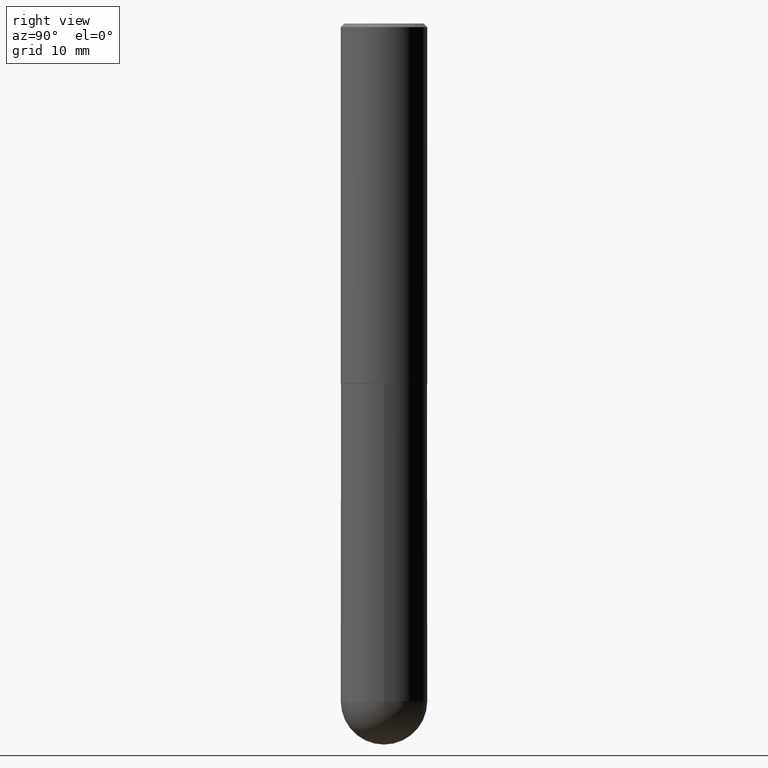
[diagram: clean part render]
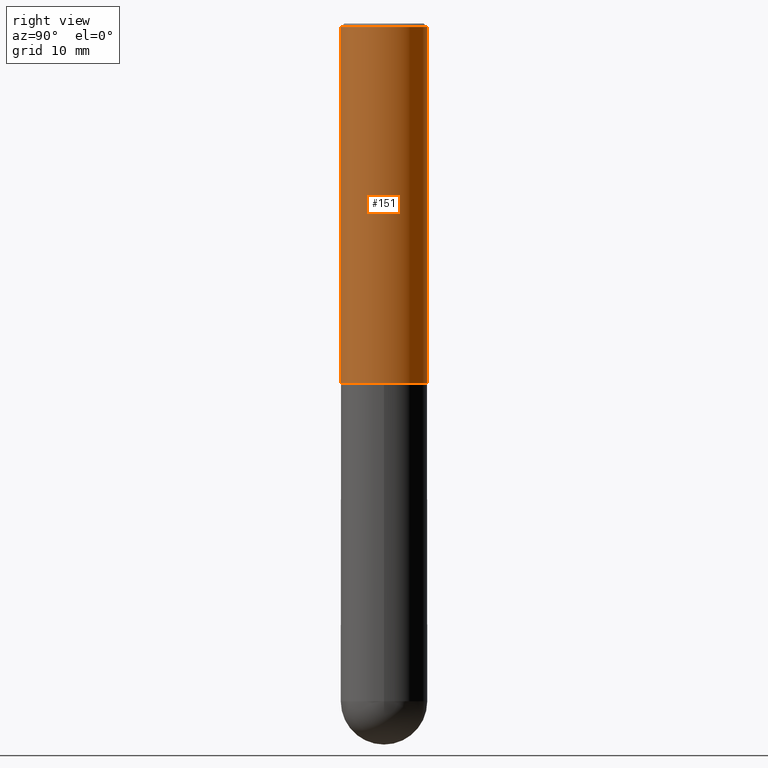
[diagram: same view with one face highlighted and labeled with its STEP entity id]
A machine part, right view. The second image highlights one B-rep face of the part: STEP entity #151.
In plain terms, the highlighted cylindrical surface (partial cylindrical patch) has radius 5.9995 mm, axis along (-0, 0, 1).
Its self-contained STEP definition (entity closure, byte-faithful):
#4 = EDGE_CURVE ( 'NONE', #54, #133, #227, .T. ) ;
#5 = CARTESIAN_POINT ( 'NONE',  ( 1.678301941865381835E-15, 0.2361999999999933597, -1.967500000000001137 ) ) ;
#16 = VERTEX_POINT ( 'NONE', #126 ) ;
#17 = ORIENTED_EDGE ( 'NONE', *, *, #149, .F. ) ;
#27 = EDGE_CURVE ( 'NONE', #54, #305, #206, .T. ) ;
#28 = VECTOR ( 'NONE', #360, 39.37007874015748143 ) ;
#33 = CARTESIAN_POINT ( 'NONE',  ( -1.620449627073635079E-15, -0.2362000000000000766, -0.01999999999999922673 ) ) ;
#34 = CYLINDRICAL_SURFACE ( 'NONE', #345, 0.2362000000000001043 ) ;
#37 = CIRCLE ( 'NONE', #114, 0.2361999999999999933 ) ;
#41 = ORIENTED_EDGE ( 'NONE', *, *, #27, .T. ) ;
#54 = VERTEX_POINT ( 'NONE', #251 ) ;
#60 = AXIS2_PLACEMENT_3D ( 'NONE', #95, #375, #153 ) ;
#95 = CARTESIAN_POINT ( 'NONE',  ( 4.809137526040556277E-29, -6.872815271738149679E-15, -1.967500000000000249 ) ) ;
#103 = CARTESIAN_POINT ( 'NONE',  ( -1.649375784469496722E-15, -0.2362000000000001043, 8.250871497761379229E-16 ) ) ;
#105 = CARTESIAN_POINT ( 'NONE',  ( 1.678301941865357183E-15, 0.2362000000000001043, -8.250871497761379229E-16 ) ) ;
#114 = AXIS2_PLACEMENT_3D ( 'NONE', #216, #376, #208 ) ;
#126 = CARTESIAN_POINT ( 'NONE',  ( 1.649375784469496525E-15, 0.2361999999999999378, -0.02000000000000087472 ) ) ;
#133 = VERTEX_POINT ( 'NONE', #33 ) ;
#149 = EDGE_CURVE ( 'NONE', #133, #16, #37, .T. ) ;
#151 = ADVANCED_FACE ( 'NONE', ( #342 ), #34, .T. ) ;
#153 = DIRECTION ( 'NONE',  ( -6.982962677686265133E-15, -1.000000000000000000, 3.469747663417773847E-15 ) ) ;
#154 = CARTESIAN_POINT ( 'NONE',  ( 0.000000000000000000, 0.000000000000000000, 0.000000000000000000 ) ) ;
#158 = ORIENTED_EDGE ( 'NONE', *, *, #4, .F. ) ;
#167 = DIRECTION ( 'NONE',  ( -2.444288450338274442E-29, 3.493171675597534541E-15, 1.000000000000000000 ) ) ;
#206 = CIRCLE ( 'NONE', #60, 0.2362000000000002153 ) ;
#208 = DIRECTION ( 'NONE',  ( -6.982962677686265922E-15, -1.000000000000000000, 3.487819265831411744E-15 ) ) ;
#215 = DIRECTION ( 'NONE',  ( -6.982962677686265922E-15, -1.000000000000000000, 3.493171675597534146E-15 ) ) ;
#216 = CARTESIAN_POINT ( 'NONE',  ( 4.888576900676561635E-31, -6.986343351195086880E-17, -0.02000000000000005246 ) ) ;
#227 = LINE ( 'NONE', #103, #28 ) ;
#251 = CARTESIAN_POINT ( 'NONE',  ( -1.649375784469449391E-15, -0.2362000000000070710, -1.967499999999999361 ) ) ;
#292 = LINE ( 'NONE', #105, #372 ) ;
#305 = VERTEX_POINT ( 'NONE', #5 ) ;
#314 = DIRECTION ( 'NONE',  ( -2.444288450338274722E-29, 3.493171675597534541E-15, 1.000000000000000000 ) ) ;
#336 = ORIENTED_EDGE ( 'NONE', *, *, #389, .T. ) ;
#342 = FACE_OUTER_BOUND ( 'NONE', #368, .T. ) ;
#345 = AXIS2_PLACEMENT_3D ( 'NONE', #154, #314, #215 ) ;
#360 = DIRECTION ( 'NONE',  ( -2.444288450338274442E-29, 3.493171675597534541E-15, 1.000000000000000000 ) ) ;
#368 = EDGE_LOOP ( 'NONE', ( #41, #336, #17, #158 ) ) ;
#372 = VECTOR ( 'NONE', #167, 39.37007874015748143 ) ;
#375 = DIRECTION ( 'NONE',  ( -2.444288450338274722E-29, 3.493171675597534541E-15, 1.000000000000000000 ) ) ;
#376 = DIRECTION ( 'NONE',  ( -2.444288450338274722E-29, 3.493171675597534541E-15, 1.000000000000000000 ) ) ;
#389 = EDGE_CURVE ( 'NONE', #305, #16, #292, .T. ) ;